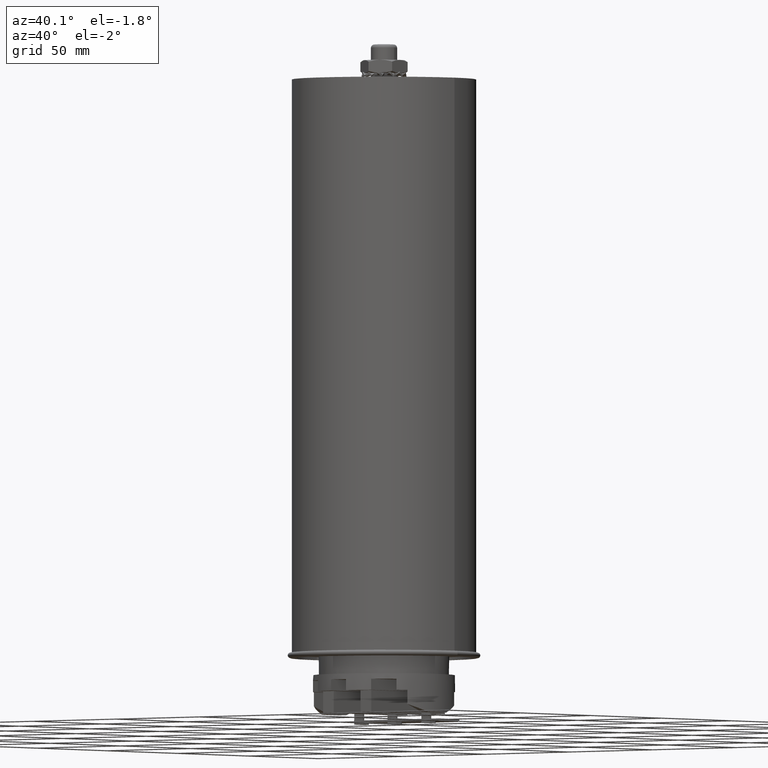
[diagram: clean part render]
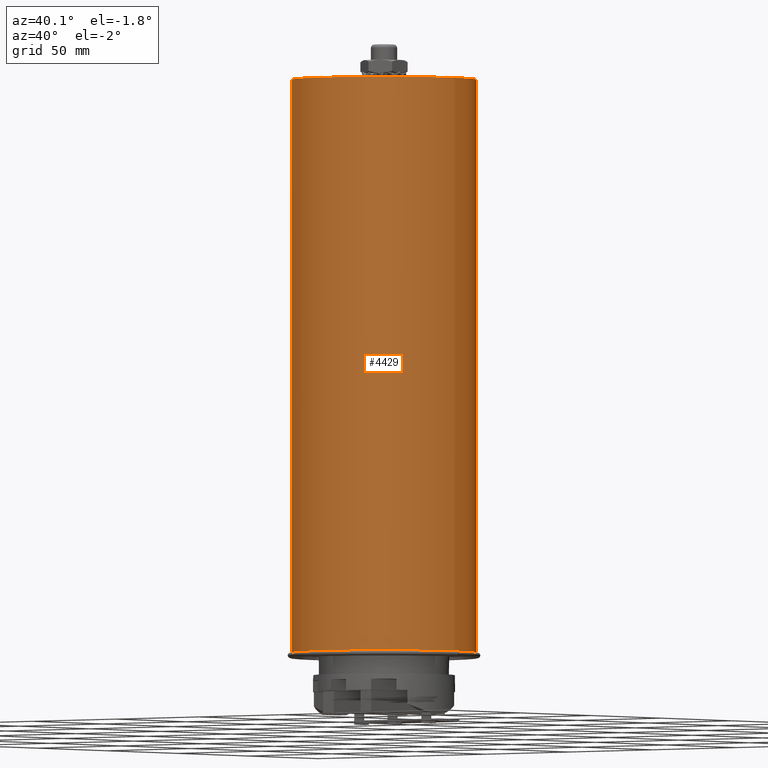
[diagram: same view with one face highlighted and labeled with its STEP entity id]
A machine part, auxiliary view. The second image highlights one B-rep face of the part: STEP entity #4429.
In plain terms, the highlighted cylindrical surface (bore or boss wall) has radius 42.164 mm, axis along (0, 0, 1).
Its self-contained STEP definition (entity closure, byte-faithful):
#363=FACE_OUTER_BOUND('',#617,.T.);
#617=EDGE_LOOP('',(#3128,#3129,#3130,#3131));
#901=CIRCLE('',#4819,1.66);
#902=CIRCLE('',#4820,1.66);
#1056=LINE('',#6429,#1511);
#1511=VECTOR('',#5275,1.66);
#1986=VERTEX_POINT('',#6426);
#1987=VERTEX_POINT('',#6428);
#2434=EDGE_CURVE('',#1986,#1986,#901,.T.);
#2435=EDGE_CURVE('',#1986,#1987,#1056,.T.);
#2436=EDGE_CURVE('',#1987,#1987,#902,.T.);
#3128=ORIENTED_EDGE('',*,*,#2434,.F.);
#3129=ORIENTED_EDGE('',*,*,#2435,.T.);
#3130=ORIENTED_EDGE('',*,*,#2436,.F.);
#3131=ORIENTED_EDGE('',*,*,#2435,.F.);
#4352=CYLINDRICAL_SURFACE('',#4818,1.66);
#4429=ADVANCED_FACE('',(#363),#4352,.T.);
#4818=AXIS2_PLACEMENT_3D('',#6425,#5271,#5272);
#4819=AXIS2_PLACEMENT_3D('',#6427,#5273,#5274);
#4820=AXIS2_PLACEMENT_3D('',#6430,#5276,#5277);
#5271=DIRECTION('center_axis',(0.,0.,1.));
#5272=DIRECTION('ref_axis',(-1.,0.,0.));
#5273=DIRECTION('center_axis',(0.,0.,1.));
#5274=DIRECTION('ref_axis',(-1.,0.,0.));
#5275=DIRECTION('',(0.,0.,-1.));
#5276=DIRECTION('center_axis',(0.,0.,-1.));
#5277=DIRECTION('ref_axis',(-1.,0.,0.));
#6425=CARTESIAN_POINT('Origin',(0.,0.,0.05));
#6426=CARTESIAN_POINT('',(1.66,2.03291368658461E-16,10.38));
#6427=CARTESIAN_POINT('Origin',(0.,0.,10.38));
#6428=CARTESIAN_POINT('',(1.66,2.03291368658461E-16,0.05));
#6429=CARTESIAN_POINT('',(1.66,2.03291368658461E-16,0.05));
#6430=CARTESIAN_POINT('Origin',(0.,0.,0.05));